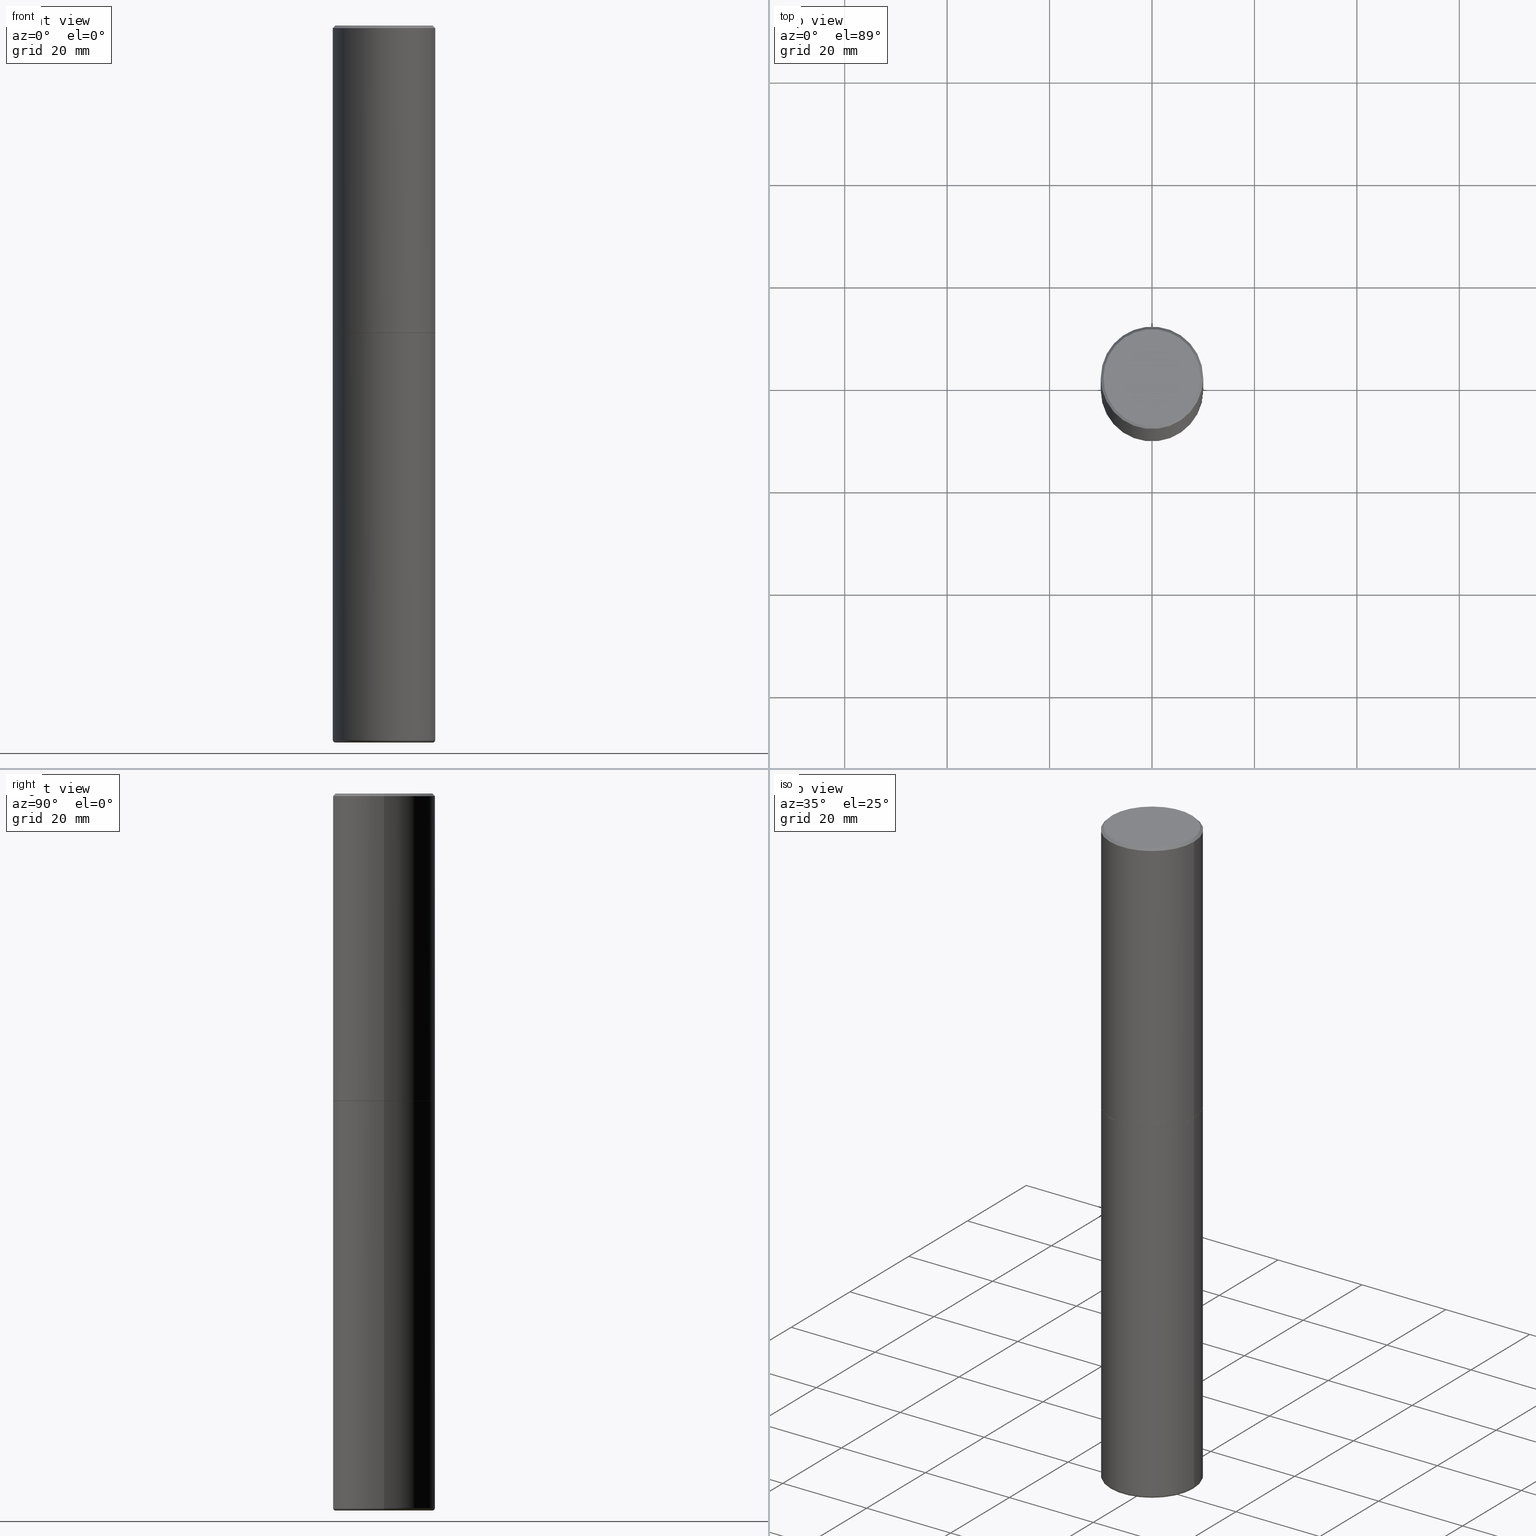
[diagram: canonical four-view strip — front | top / right | iso, engineering-drawing reading convention]
A machine part, canonical four-view strip (front | top / right | iso — engineering-drawing reading convention). The complete STEP part file that produces these views, byte-faithful:
ISO-10303-21;
HEADER;
FILE_DESCRIPTION (( 'STEP AP203' ),
    '1' );
FILE_NAME ('74541.STEP',
    '2024-03-06T15:25:58',
    ( '' ),
    ( '' ),
    'SwSTEP 2.0',
    'SolidWorks 2023',
    '' );
FILE_SCHEMA (( 'CONFIG_CONTROL_DESIGN' ));
ENDSEC;

DATA;
#1 = DIRECTION ( 'NONE',  ( -2.445468806185136877E-29, 3.491481338843145188E-15, 1.000000000000000000 ) ) ;
#2 = APPROVAL ( #349, 'UNSPECIFIED' ) ;
#3 = CIRCLE ( 'NONE', #73, 0.01969999999999985998 ) ;
#4 = DIRECTION ( 'NONE',  ( -2.445468806185136597E-29, 3.491481338843145583E-15, 1.000000000000000000 ) ) ;
#5 = CARTESIAN_POINT ( 'NONE',  ( 0.3937000000000001609, -2.749192406205084400E-15, 1.919750796630860732E-29 ) ) ;
#6 = DESIGN_CONTEXT ( 'detailed design', #38, 'design' ) ;
#7 = ORIENTED_EDGE ( 'NONE', *, *, #146, .F. ) ;
#8 = DIRECTION ( 'NONE',  ( 1.000000000000000000, -6.982962677686265133E-15, 0.000000000000000000 ) ) ;
#9 = CARTESIAN_POINT ( 'NONE',  ( -0.3937000000000000499, 2.679362779428219918E-15, -0.02000000000000008715 ) ) ;
#10 = LOCAL_TIME ( 10, 25, 58.00000000000000000, #309 ) ;
#11 = EDGE_CURVE ( 'NONE', #120, #148, #275, .T. ) ;
#12 = PERSON_AND_ORGANIZATION ( #292, #279 ) ;
#13 = ADVANCED_FACE ( 'NONE', ( #190 ), #294, .T. ) ;
#14 = PERSON_AND_ORGANIZATION_ROLE ( 'creator' ) ;
#15 = ORIENTED_EDGE ( 'NONE', *, *, #324, .F. ) ;
#16 = AXIS2_PLACEMENT_3D ( 'NONE', #393, #299, #77 ) ;
#17 = VERTEX_POINT ( 'NONE', #130 ) ;
#18 = AXIS2_PLACEMENT_3D ( 'NONE', #43, #305, #366 ) ;
#19 = APPLICATION_CONTEXT ( 'configuration controlled 3d designs of mechanical parts and assemblies' ) ;
#20 = DIRECTION ( 'NONE',  ( 1.000000000000000000, -6.982962677686265133E-15, 0.000000000000000000 ) ) ;
#21 = ORIENTED_EDGE ( 'NONE', *, *, #67, .T. ) ;
#22 = ORIENTED_EDGE ( 'NONE', *, *, #67, .F. ) ;
#23 = EDGE_LOOP ( 'NONE', ( #172, #56, #80, #181 ) ) ;
#24 = VECTOR ( 'NONE', #154, 39.37007874015748143 ) ;
#25 =( GEOMETRIC_REPRESENTATION_CONTEXT ( 3 ) GLOBAL_UNCERTAINTY_ASSIGNED_CONTEXT ( ( #325 ) ) GLOBAL_UNIT_ASSIGNED_CONTEXT ( ( #375, #336, #55 ) ) REPRESENTATION_CONTEXT ( 'NONE', 'WORKASPACE' ) );
#26 = CARTESIAN_POINT ( 'NONE',  ( 0.000000000000000000, 0.000000000000000000, 0.000000000000000000 ) ) ;
#27 = APPROVAL_ROLE ( '' ) ;
#28 = FACE_OUTER_BOUND ( 'NONE', #134, .T. ) ;
#29 = CALENDAR_DATE ( 2024, 6, 3 ) ;
#30 = FACE_OUTER_BOUND ( 'NONE', #365, .T. ) ;
#31 = DIRECTION ( 'NONE',  ( -2.445468806185136597E-29, 3.491481338843145583E-15, 1.000000000000000000 ) ) ;
#32 = DIRECTION ( 'NONE',  ( -2.445468806185136597E-29, 3.491481338843145583E-15, 1.000000000000000000 ) ) ;
#33 = CARTESIAN_POINT ( 'NONE',  ( 4.890937612370294178E-31, -6.982962677686321191E-17, -0.02000000000000008715 ) ) ;
#34 = ORIENTED_EDGE ( 'NONE', *, *, #356, .F. ) ;
#35 = DIRECTION ( 'NONE',  ( -2.445468806185136597E-29, 3.491481338843145583E-15, 1.000000000000000000 ) ) ;
#36 = EDGE_LOOP ( 'NONE', ( #296, #152, #341, #48 ) ) ;
#37 = ADVANCED_FACE ( 'NONE', ( #316 ), #254, .T. ) ;
#38 = APPLICATION_CONTEXT ( 'configuration controlled 3d designs of mechanical parts and assemblies' ) ;
#39 = CARTESIAN_POINT ( 'NONE',  ( -0.3936999999999999389, 2.797406750687513998E-15, -1.936584745033356455E-29 ) ) ;
#40 = ADVANCED_FACE ( 'NONE', ( #28 ), #322, .F. ) ;
#41 = DIRECTION ( 'NONE',  ( -2.445468806185136597E-29, 3.491481338843145583E-15, 1.000000000000000000 ) ) ;
#42 = CC_DESIGN_APPROVAL ( #132, ( #72 ) ) ;
#43 = CARTESIAN_POINT ( 'NONE',  ( 0.000000000000000000, 0.000000000000000000, 0.000000000000000000 ) ) ;
#44 = EDGE_CURVE ( 'NONE', #259, #207, #350, .T. ) ;
#45 = VERTEX_POINT ( 'NONE', #159 ) ;
#46 = MANIFOLD_SOLID_BREP ( 'Body-Move/Copy2[2]', #372 ) ;
#47 = DIRECTION ( 'NONE',  ( 1.000000000000000000, -6.982962677686266711E-15, 4.876176775795935793E-29 ) ) ;
#48 = ORIENTED_EDGE ( 'NONE', *, *, #193, .F. ) ;
#49 = DIRECTION ( 'NONE',  ( -2.445468806185136597E-29, 3.491481338843145583E-15, 1.000000000000000000 ) ) ;
#50 = ORIENTED_EDGE ( 'NONE', *, *, #193, .T. ) ;
#51 =( LENGTH_UNIT ( ) NAMED_UNIT ( * ) SI_UNIT ( $, .METRE. ) );
#52 = VERTEX_POINT ( 'NONE', #284 ) ;
#53 = CIRCLE ( 'NONE', #191, 0.01969999999999985998 ) ;
#54 = CC_DESIGN_PERSON_AND_ORGANIZATION_ASSIGNMENT ( #384, #89, ( #396 ) ) ;
#55 =( NAMED_UNIT ( * ) SI_UNIT ( $, .STERADIAN. ) SOLID_ANGLE_UNIT ( ) );
#56 = ORIENTED_EDGE ( 'NONE', *, *, #158, .T. ) ;
#57 = PERSON_AND_ORGANIZATION ( #292, #279 ) ;
#58 = VERTEX_POINT ( 'NONE', #94 ) ;
#59 = VECTOR ( 'NONE', #328, 39.37007874015748143 ) ;
#60 = CIRCLE ( 'NONE', #416, 0.3937000000000000499 ) ;
#61 = FACE_OUTER_BOUND ( 'NONE', #150, .T. ) ;
#62 = PERSON_AND_ORGANIZATION ( #292, #279 ) ;
#63 = CARTESIAN_POINT ( 'NONE',  ( -0.3937000000000000499, 2.679362779428219918E-15, -0.02000000000000008715 ) ) ;
#64 = DIRECTION ( 'NONE',  ( 1.000000000000000000, -6.982962677686269866E-15, 0.000000000000000000 ) ) ;
#65 = AXIS2_PLACEMENT_3D ( 'NONE', #297, #257, #200 ) ;
#66 = PRODUCT_DEFINITION_FORMATION_WITH_SPECIFIED_SOURCE ( 'ANY', '', #74, .NOT_KNOWN. ) ;
#67 = EDGE_CURVE ( 'NONE', #116, #304, #271, .T. ) ;
#68 = FACE_OUTER_BOUND ( 'NONE', #392, .T. ) ;
#69 = DIRECTION ( 'NONE',  ( 1.000000000000000000, -6.982962677686265133E-15, 0.000000000000000000 ) ) ;
#70 = EDGE_CURVE ( 'NONE', #116, #17, #128, .T. ) ;
#71 = DIRECTION ( 'NONE',  ( -1.000000000000000000, 6.982962677686265922E-15, 0.000000000000000000 ) ) ;
#72 = PRODUCT_DEFINITION ( 'UNKNOWN', '', #66, #6 ) ;
#73 = AXIS2_PLACEMENT_3D ( 'NONE', #224, #198, #76 ) ;
#74 = PRODUCT ( '74541', '74541', '', ( #179 ) ) ;
#75 = CARTESIAN_POINT ( 'NONE',  ( 1.347893496593123646E-28, -1.924434684343564878E-14, -5.511800000000000033 ) ) ;
#76 = DIRECTION ( 'NONE',  ( 1.000000000000000000, -6.982962677686179936E-15, 0.000000000000000000 ) ) ;
#77 = DIRECTION ( 'NONE',  ( -1.000000000000000000, 6.982962677686265922E-15, -4.876176775795935793E-29 ) ) ;
#78 = CLOSED_SHELL ( 'NONE', ( #100, #13, #40, #37, #383, #351 ) ) ;
#79 = APPLICATION_PROTOCOL_DEFINITION ( 'international standard', 'config_control_design', 1994, #19 ) ;
#80 = ORIENTED_EDGE ( 'NONE', *, *, #11, .T. ) ;
#81 = DIRECTION ( 'NONE',  ( 1.000000000000000000, -6.982962677686270655E-15, 4.883557194083114022E-29 ) ) ;
#82 = EDGE_LOOP ( 'NONE', ( #313, #21, #329, #83 ) ) ;
#83 = ORIENTED_EDGE ( 'NONE', *, *, #129, .F. ) ;
#84 = APPROVAL ( #156, 'UNSPECIFIED' ) ;
#85 = AXIS2_PLACEMENT_3D ( 'NONE', #261, #131, #265 ) ;
#86 = ORIENTED_EDGE ( 'NONE', *, *, #266, .F. ) ;
#87 = ORIENTED_EDGE ( 'NONE', *, *, #418, .T. ) ;
#88 = DIRECTION ( 'NONE',  ( -2.445468806185136877E-29, 3.491481338843145188E-15, 1.000000000000000000 ) ) ;
#89 = PERSON_AND_ORGANIZATION_ROLE ( 'classification_officer' ) ;
#90 = CARTESIAN_POINT ( 'NONE',  ( 0.3936999999999999389, -2.192475706726552397E-14, -5.492099999999999760 ) ) ;
#91 = AXIS2_PLACEMENT_3D ( 'NONE', #382, #218, #155 ) ;
#92 = AXIS2_PLACEMENT_3D ( 'NONE', #330, #104, #390 ) ;
#93 = DATE_TIME_ROLE ( 'creation_date' ) ;
#94 = CARTESIAN_POINT ( 'NONE',  ( 0.3739999999999999991, -2.185597488489031278E-14, -5.511800000000000033 ) ) ;
#95 = CALENDAR_DATE ( 2024, 6, 3 ) ;
#96 = DIRECTION ( 'NONE',  ( 1.000000000000000000, -6.982962677686265133E-15, 0.000000000000000000 ) ) ;
#97 = DIRECTION ( 'NONE',  ( -2.445468806185136597E-29, 3.491481338843145583E-15, 1.000000000000000000 ) ) ;
#98 = VECTOR ( 'NONE', #88, 39.37007874015748143 ) ;
#99 = CC_DESIGN_APPROVAL ( #2, ( #396 ) ) ;
#100 = ADVANCED_FACE ( 'NONE', ( #61 ), #352, .T. ) ;
#101 = DIRECTION ( 'NONE',  ( -2.438088387897960049E-29, 3.491481338843145188E-15, 1.000000000000000000 ) ) ;
#102 = PLANE ( 'NONE',  #16 ) ;
#103 = PRODUCT_RELATED_PRODUCT_CATEGORY ( 'detail', '', ( #74 ) ) ;
#104 = DIRECTION ( 'NONE',  ( 2.438088387897960049E-29, -3.491481338843145188E-15, -1.000000000000000000 ) ) ;
#105 = AXIS2_PLACEMENT_3D ( 'NONE', #391, #41, #69 ) ;
#106 = DIRECTION ( 'NONE',  ( 1.000000000000000000, -6.982962677686266711E-15, 4.877734241229871763E-29 ) ) ;
#107 = DIRECTION ( 'NONE',  ( -2.445468806185136597E-29, 3.491481338843145583E-15, 1.000000000000000000 ) ) ;
#108 = ORIENTED_EDGE ( 'NONE', *, *, #115, .T. ) ;
#109 = DIRECTION ( 'NONE',  ( -1.000000000000000000, 7.105427357600978193E-15, 0.000000000000000000 ) ) ;
#110 = ORIENTED_EDGE ( 'NONE', *, *, #324, .T. ) ;
#111 = CC_DESIGN_APPROVAL ( #84, ( #66 ) ) ;
#112 = APPLICATION_PROTOCOL_DEFINITION ( 'international standard', 'config_control_design', 1994, #38 ) ;
#113 = ORIENTED_EDGE ( 'NONE', *, *, #342, .T. ) ;
#114 = DIRECTION ( 'NONE',  ( 1.000000000000000000, -6.982962677686267499E-15, 0.000000000000000000 ) ) ;
#115 = EDGE_CURVE ( 'NONE', #120, #273, #242, .T. ) ;
#116 = VERTEX_POINT ( 'NONE', #354 ) ;
#117 = DATE_AND_TIME ( #405, #236 ) ;
#118 = ORIENTED_EDGE ( 'NONE', *, *, #162, .F. ) ;
#119 = FACE_OUTER_BOUND ( 'NONE', #82, .T. ) ;
#120 = VERTEX_POINT ( 'NONE', #90 ) ;
#121 = APPROVAL_PERSON_ORGANIZATION ( #246, #84, #287 ) ;
#122 = DIRECTION ( 'NONE',  ( -1.000000000000000000, 6.982962677686265922E-15, 0.000000000000000000 ) ) ;
#123 = PERSON_AND_ORGANIZATION ( #292, #279 ) ;
#124 = CARTESIAN_POINT ( 'NONE',  ( 4.890937612370294178E-31, -6.982962677686321191E-17, -0.02000000000000008715 ) ) ;
#125 = PERSON_AND_ORGANIZATION_ROLE ( 'design_supplier' ) ;
#126 = DIRECTION ( 'NONE',  ( -2.445468806185136597E-29, 3.491481338843145583E-15, 1.000000000000000000 ) ) ;
#127 = AXIS2_PLACEMENT_3D ( 'NONE', #75, #35, #166 ) ;
#128 = LINE ( 'NONE', #219, #175 ) ;
#129 = EDGE_CURVE ( 'NONE', #17, #270, #278, .T. ) ;
#130 = CARTESIAN_POINT ( 'NONE',  ( -0.3937000000000003830, -1.359550931339130834E-15, -2.361199999999999743 ) ) ;
#131 = DIRECTION ( 'NONE',  ( -2.445468806185136597E-29, 3.491481338843145583E-15, 1.000000000000000000 ) ) ;
#132 = APPROVAL ( #338, 'UNSPECIFIED' ) ;
#133 = CARTESIAN_POINT ( 'NONE',  ( 1.343075923044938861E-28, -1.917556466106043760E-14, -5.492099999999999760 ) ) ;
#134 = EDGE_LOOP ( 'NONE', ( #87, #343 ) ) ;
#135 = CARTESIAN_POINT ( 'NONE',  ( 0.3937000000000000499, -2.770807688499515734E-15, -0.02000000000000008715 ) ) ;
#136 = CARTESIAN_POINT ( 'NONE',  ( -0.3936999999999999389, -1.637815791037292360E-14, -5.492099999999999760 ) ) ;
#137 = AXIS2_PLACEMENT_3D ( 'NONE', #326, #395, #106 ) ;
#138 = AXIS2_PLACEMENT_3D ( 'NONE', #201, #32, #194 ) ;
#139 = DIRECTION ( 'NONE',  ( 1.000000000000000000, -6.982962677686265922E-15, 4.876176775795935793E-29 ) ) ;
#140 = ADVANCED_BREP_SHAPE_REPRESENTATION ( '74541', ( #335, #46, #243 ), #25 ) ;
#141 = ADVANCED_FACE ( 'NONE', ( #68 ), #202, .T. ) ;
#142 = APPROVAL_ROLE ( '' ) ;
#143 = DIRECTION ( 'NONE',  ( 0.000000000000000000, 0.000000000000000000, 1.000000000000000000 ) ) ;
#144 = ORIENTED_EDGE ( 'NONE', *, *, #158, .F. ) ;
#145 = CIRCLE ( 'NONE', #256, 0.3937000000000000499 ) ;
#146 = EDGE_CURVE ( 'NONE', #17, #207, #248, .T. ) ;
#147 = DATE_AND_TIME ( #203, #10 ) ;
#148 = VERTEX_POINT ( 'NONE', #285 ) ;
#149 = PERSON_AND_ORGANIZATION_ROLE ( 'design_owner' ) ;
#150 = EDGE_LOOP ( 'NONE', ( #108, #268, #232, #212 ) ) ;
#151 = CARTESIAN_POINT ( 'NONE',  ( 0.000000000000000000, 0.000000000000000000, 0.000000000000000000 ) ) ;
#152 = ORIENTED_EDGE ( 'NONE', *, *, #410, .T. ) ;
#153 = APPROVAL_PERSON_ORGANIZATION ( #177, #132, #142 ) ;
#154 = DIRECTION ( 'NONE',  ( 0.7071067811866199593, -2.468850131083015945E-15, 0.7071067811864750752 ) ) ;
#155 = DIRECTION ( 'NONE',  ( 1.000000000000000000, -6.982962677686265133E-15, 0.000000000000000000 ) ) ;
#156 = APPROVAL_STATUS ( 'not_yet_approved' ) ;
#157 = DIRECTION ( 'NONE',  ( -2.445468806185136597E-29, 3.491481338843145583E-15, 1.000000000000000000 ) ) ;
#158 = EDGE_CURVE ( 'NONE', #273, #120, #160, .T. ) ;
#159 = CARTESIAN_POINT ( 'NONE',  ( -0.3937000000000000499, -1.091416418915034540E-14, -2.362200000000000077 ) ) ;
#160 = CIRCLE ( 'NONE', #364, 0.3936999999999999389 ) ;
#161 = DIRECTION ( 'NONE',  ( 1.000000000000000000, -6.982962677686266711E-15, 4.876176775795935793E-29 ) ) ;
#162 = EDGE_CURVE ( 'NONE', #304, #270, #414, .T. ) ;
#163 = FACE_OUTER_BOUND ( 'NONE', #312, .T. ) ;
#164 = ADVANCED_FACE ( 'NONE', ( #318 ), #169, .T. ) ;
#165 = DIRECTION ( 'NONE',  ( 2.445468806185136597E-29, -3.491481338843145583E-15, -1.000000000000000000 ) ) ;
#166 = DIRECTION ( 'NONE',  ( 1.000000000000000000, -6.982962677686265133E-15, 0.000000000000000000 ) ) ;
#167 = PLANE ( 'NONE',  #249 ) ;
#168 = LINE ( 'NONE', #5, #307 ) ;
#169 = CONICAL_SURFACE ( 'NONE', #91, 0.3926999999999999935, 0.7853981633975507526 ) ;
#170 = TOROIDAL_SURFACE ( 'NONE', #223, 0.3739999999999999991, 0.01969999999999985998 ) ;
#171 = CARTESIAN_POINT ( 'NONE',  ( -0.3739999999999999991, -1.651813482931766527E-14, -5.492099999999999760 ) ) ;
#172 = ORIENTED_EDGE ( 'NONE', *, *, #269, .F. ) ;
#173 = EDGE_LOOP ( 'NONE', ( #180, #178, #367, #86 ) ) ;
#174 = EDGE_CURVE ( 'NONE', #45, #148, #145, .T. ) ;
#175 = VECTOR ( 'NONE', #386, 39.37007874015748143 ) ;
#176 = CIRCLE ( 'NONE', #105, 0.3739999999999999991 ) ;
#177 = PERSON_AND_ORGANIZATION ( #292, #279 ) ;
#178 = ORIENTED_EDGE ( 'NONE', *, *, #146, .T. ) ;
#179 = MECHANICAL_CONTEXT ( 'NONE', #19, 'mechanical' ) ;
#180 = ORIENTED_EDGE ( 'NONE', *, *, #282, .T. ) ;
#181 = ORIENTED_EDGE ( 'NONE', *, *, #174, .F. ) ;
#182 = AXIS2_PLACEMENT_3D ( 'NONE', #377, #31, #96 ) ;
#183 = DATE_AND_TIME ( #253, #380 ) ;
#184 = DIRECTION ( 'NONE',  ( -2.445468806185136597E-29, 3.491481338843145583E-15, 1.000000000000000000 ) ) ;
#185 = ADVANCED_FACE ( 'NONE', ( #30 ), #167, .F. ) ;
#186 = DIRECTION ( 'NONE',  ( 1.000000000000000000, -6.982962677686265922E-15, 0.000000000000000000 ) ) ;
#187 = PRODUCT_DEFINITION_SHAPE ( 'NONE', 'NONE',  #72 ) ;
#188 = SHAPE_DEFINITION_REPRESENTATION ( #187, #140 ) ;
#189 = DIRECTION ( 'NONE',  ( 1.000000000000000000, -6.982962677686267499E-15, 0.000000000000000000 ) ) ;
#190 = FACE_OUTER_BOUND ( 'NONE', #36, .T. ) ;
#191 = AXIS2_PLACEMENT_3D ( 'NONE', #171, #311, #109 ) ;
#192 = CARTESIAN_POINT ( 'NONE',  ( -0.3937000000000001609, 2.797406750687515575E-15, -1.936584745033357296E-29 ) ) ;
#193 = EDGE_CURVE ( 'NONE', #58, #120, #3, .T. ) ;
#194 = DIRECTION ( 'NONE',  ( 1.000000000000000000, -6.982962677686265922E-15, 0.000000000000000000 ) ) ;
#195 = DIRECTION ( 'NONE',  ( -2.445468806185136877E-29, 3.491481338843145188E-15, 1.000000000000000000 ) ) ;
#196 = AXIS2_PLACEMENT_3D ( 'NONE', #411, #126, #186 ) ;
#197 = CIRCLE ( 'NONE', #138, 0.3937000000000000499 ) ;
#198 = DIRECTION ( 'NONE',  ( -6.982962677686266711E-15, -1.000000000000000000, 3.491481338843145583E-15 ) ) ;
#199 = CC_DESIGN_DATE_AND_TIME_ASSIGNMENT ( #117, #93, ( #72 ) ) ;
#200 = DIRECTION ( 'NONE',  ( 1.000000000000000000, -6.982962677686265922E-15, 0.000000000000000000 ) ) ;
#201 = CARTESIAN_POINT ( 'NONE',  ( 4.890937612370294178E-31, -6.982962677686321191E-17, -0.02000000000000008715 ) ) ;
#202 = CONICAL_SURFACE ( 'NONE', #209, 0.3937000000000000499, 0.7853981633974447263 ) ;
#203 = CALENDAR_DATE ( 2024, 6, 3 ) ;
#204 = CC_DESIGN_PERSON_AND_ORGANIZATION_ASSIGNMENT ( #62, #125, ( #66 ) ) ;
#205 = ORIENTED_EDGE ( 'NONE', *, *, #70, .T. ) ;
#206 = CYLINDRICAL_SURFACE ( 'NONE', #373, 0.3937000000000001609 ) ;
#207 = VERTEX_POINT ( 'NONE', #9 ) ;
#208 = ORIENTED_EDGE ( 'NONE', *, *, #320, .F. ) ;
#209 = AXIS2_PLACEMENT_3D ( 'NONE', #124, #252, #122 ) ;
#210 = APPROVAL_PERSON_ORGANIZATION ( #57, #2, #27 ) ;
#211 = ORIENTED_EDGE ( 'NONE', *, *, #262, .T. ) ;
#212 = ORIENTED_EDGE ( 'NONE', *, *, #11, .F. ) ;
#213 = CARTESIAN_POINT ( 'NONE',  ( 1.343075923044938861E-28, -1.917556466106043760E-14, -5.492099999999999760 ) ) ;
#214 = AXIS2_PLACEMENT_3D ( 'NONE', #26, #97, #417 ) ;
#215 = CARTESIAN_POINT ( 'NONE',  ( 5.776686413970529753E-29, -8.247577218615279626E-15, -2.362200000000000077 ) ) ;
#216 = CC_DESIGN_DATE_AND_TIME_ASSIGNMENT ( #344, #347, ( #396 ) ) ;
#217 = COORDINATED_UNIVERSAL_TIME_OFFSET ( 5, 0, .BEHIND. ) ;
#218 = DIRECTION ( 'NONE',  ( -2.445468806185136597E-29, 3.491481338843145583E-15, 1.000000000000000000 ) ) ;
#219 = CARTESIAN_POINT ( 'NONE',  ( -0.3926999999999999935, -5.457275895285365059E-15, -2.362200000000000077 ) ) ;
#220 = ADVANCED_FACE ( 'NONE', ( #227 ), #102, .F. ) ;
#221 = VECTOR ( 'NONE', #293, 39.37007874015748143 ) ;
#222 = DIRECTION ( 'NONE',  ( 2.438088387897960049E-29, -3.491481338843145188E-15, -1.000000000000000000 ) ) ;
#223 = AXIS2_PLACEMENT_3D ( 'NONE', #133, #258, #81 ) ;
#224 = CARTESIAN_POINT ( 'NONE',  ( 0.3739999999999999991, -2.178719270251510160E-14, -5.492099999999999760 ) ) ;
#225 = CARTESIAN_POINT ( 'NONE',  ( 5.776686413970529753E-29, -8.247577218615279626E-15, -2.362200000000000077 ) ) ;
#226 = ORIENTED_EDGE ( 'NONE', *, *, #262, .F. ) ;
#227 = FACE_OUTER_BOUND ( 'NONE', #302, .T. ) ;
#228 = AXIS2_PLACEMENT_3D ( 'NONE', #412, #290, #64 ) ;
#229 = CONICAL_SURFACE ( 'NONE', #340, 0.3937000000000000499, 0.7853981633974447263 ) ;
#230 = CARTESIAN_POINT ( 'NONE',  ( -0.3737000000000003097, 2.644447966039789847E-15, -2.219626494852397645E-16 ) ) ;
#231 = FACE_OUTER_BOUND ( 'NONE', #371, .T. ) ;
#232 = ORIENTED_EDGE ( 'NONE', *, *, #418, .F. ) ;
#233 = CC_DESIGN_PERSON_AND_ORGANIZATION_ASSIGNMENT ( #12, #149, ( #74 ) ) ;
#234 = ORIENTED_EDGE ( 'NONE', *, *, #44, .T. ) ;
#235 = VECTOR ( 'NONE', #1, 39.37007874015748143 ) ;
#236 = LOCAL_TIME ( 10, 25, 58.00000000000000000, #237 ) ;
#237 = COORDINATED_UNIVERSAL_TIME_OFFSET ( 5, 0, .BEHIND. ) ;
#238 = ORIENTED_EDGE ( 'NONE', *, *, #282, .F. ) ;
#239 = ORIENTED_EDGE ( 'NONE', *, *, #410, .F. ) ;
#240 = FACE_OUTER_BOUND ( 'NONE', #173, .T. ) ;
#241 = ORIENTED_EDGE ( 'NONE', *, *, #44, .F. ) ;
#242 = CIRCLE ( 'NONE', #228, 0.3936999999999999389 ) ;
#243 = AXIS2_PLACEMENT_3D ( 'NONE', #407, #143, #363 ) ;
#244 = CARTESIAN_POINT ( 'NONE',  ( -0.3739999999999999991, -1.648253746103290003E-14, -5.511800000000000033 ) ) ;
#245 = EDGE_LOOP ( 'NONE', ( #277, #306, #401, #241 ) ) ;
#246 = PERSON_AND_ORGANIZATION ( #292, #279 ) ;
#247 = DIRECTION ( 'NONE',  ( -2.445468806185136597E-29, 3.491481338843145583E-15, 1.000000000000000000 ) ) ;
#248 = LINE ( 'NONE', #192, #98 ) ;
#249 = AXIS2_PLACEMENT_3D ( 'NONE', #225, #101, #139 ) ;
#250 = APPROVAL_DATE_TIME ( #280, #2 ) ;
#251 = LOCAL_TIME ( 10, 25, 58.00000000000000000, #289 ) ;
#252 = DIRECTION ( 'NONE',  ( 2.445468806185136597E-29, -3.491481338843145583E-15, -1.000000000000000000 ) ) ;
#253 = CALENDAR_DATE ( 2024, 6, 3 ) ;
#254 = CYLINDRICAL_SURFACE ( 'NONE', #214, 0.3936999999999999389 ) ;
#255 = CARTESIAN_POINT ( 'NONE',  ( 5.776686413970529753E-29, -8.247577218615279626E-15, -2.362200000000000077 ) ) ;
#256 = AXIS2_PLACEMENT_3D ( 'NONE', #215, #247, #189 ) ;
#257 = DIRECTION ( 'NONE',  ( -2.445468806185136597E-29, 3.491481338843145583E-15, 1.000000000000000000 ) ) ;
#258 = DIRECTION ( 'NONE',  ( -2.445468806185136597E-29, 3.491481338843145583E-15, 1.000000000000000000 ) ) ;
#259 = VERTEX_POINT ( 'NONE', #230 ) ;
#260 = LINE ( 'NONE', #135, #221 ) ;
#261 = CARTESIAN_POINT ( 'NONE',  ( 4.890937612370294178E-31, -6.982962677686321191E-17, -0.02000000000000008715 ) ) ;
#262 = EDGE_CURVE ( 'NONE', #304, #116, #409, .T. ) ;
#263 = AXIS2_PLACEMENT_3D ( 'NONE', #255, #222, #385 ) ;
#264 = CONICAL_SURFACE ( 'NONE', #332, 0.3926999999999999935, 0.7853981633975507526 ) ;
#265 = DIRECTION ( 'NONE',  ( 1.000000000000000000, -6.982962677686265922E-15, 0.000000000000000000 ) ) ;
#266 = EDGE_CURVE ( 'NONE', #270, #404, #168, .T. ) ;
#267 = LENGTH_MEASURE_WITH_UNIT ( LENGTH_MEASURE( 0.02539999999999999897 ), #51 );
#268 = ORIENTED_EDGE ( 'NONE', *, *, #269, .T. ) ;
#269 = EDGE_CURVE ( 'NONE', #273, #45, #355, .T. ) ;
#270 = VERTEX_POINT ( 'NONE', #359 ) ;
#271 = CIRCLE ( 'NONE', #182, 0.3926999999999999935 ) ;
#272 = CARTESIAN_POINT ( 'NONE',  ( 0.3937000000000000499, -2.770807688499515734E-15, -0.02000000000000008715 ) ) ;
#273 = VERTEX_POINT ( 'NONE', #136 ) ;
#274 = EDGE_CURVE ( 'NONE', #58, #408, #394, .T. ) ;
#275 = LINE ( 'NONE', #406, #235 ) ;
#276 = DIRECTION ( 'NONE',  ( -2.445468806185136597E-29, 3.491481338843145583E-15, 1.000000000000000000 ) ) ;
#277 = ORIENTED_EDGE ( 'NONE', *, *, #342, .F. ) ;
#278 = CIRCLE ( 'NONE', #196, 0.3937000000000002720 ) ;
#279 = ORGANIZATION ( 'UNSPECIFIED', 'UNSPECIFIED', '' ) ;
#280 = DATE_AND_TIME ( #95, #389 ) ;
#281 = CARTESIAN_POINT ( 'NONE',  ( 0.000000000000000000, 0.000000000000000000, 0.000000000000000000 ) ) ;
#282 = EDGE_CURVE ( 'NONE', #270, #17, #358, .T. ) ;
#283 = PERSON_AND_ORGANIZATION_ROLE ( 'creator' ) ;
#284 = CARTESIAN_POINT ( 'NONE',  ( 0.3737000000000003097, -2.667287895133369937E-15, -2.219626494852029345E-16 ) ) ;
#285 = CARTESIAN_POINT ( 'NONE',  ( 0.3937000000000000499, -1.099676962482036284E-14, -2.362200000000000077 ) ) ;
#286 = AXIS2_PLACEMENT_3D ( 'NONE', #213, #348, #288 ) ;
#287 = APPROVAL_ROLE ( '' ) ;
#288 = DIRECTION ( 'NONE',  ( 1.000000000000000000, -6.982962677686270655E-15, 4.883557194083114022E-29 ) ) ;
#289 = COORDINATED_UNIVERSAL_TIME_OFFSET ( 5, 0, .BEHIND. ) ;
#290 = DIRECTION ( 'NONE',  ( -2.445468806185136597E-29, 3.491481338843145583E-15, 1.000000000000000000 ) ) ;
#291 = EDGE_CURVE ( 'NONE', #207, #404, #415, .T. ) ;
#292 = PERSON ( 'UNSPECIFIED', 'UNSPECIFIED', 'UNSPECIFIED', ('UNSPECIFIED'), ('UNSPECIFIED'), ('UNSPECIFIED') ) ;
#293 = DIRECTION ( 'NONE',  ( 0.7071067811865450192, -7.319954787623246579E-15, -0.7071067811865500152 ) ) ;
#294 = TOROIDAL_SURFACE ( 'NONE', #286, 0.3739999999999999991, 0.01969999999999985998 ) ;
#295 = FACE_OUTER_BOUND ( 'NONE', #376, .T. ) ;
#296 = ORIENTED_EDGE ( 'NONE', *, *, #274, .T. ) ;
#297 = CARTESIAN_POINT ( 'NONE',  ( 5.774240945164344150E-29, -8.244085737276435042E-15, -2.361199999999999743 ) ) ;
#298 = ORIENTED_EDGE ( 'NONE', *, *, #274, .F. ) ;
#299 = DIRECTION ( 'NONE',  ( 2.438088387897960049E-29, -3.491481338843145188E-15, -1.000000000000000000 ) ) ;
#300 = FACE_OUTER_BOUND ( 'NONE', #245, .T. ) ;
#301 = CIRCLE ( 'NONE', #321, 0.3737000000000003097 ) ;
#302 = EDGE_LOOP ( 'NONE', ( #110, #113 ) ) ;
#303 = PERSON_AND_ORGANIZATION ( #292, #279 ) ;
#304 = VERTEX_POINT ( 'NONE', #362 ) ;
#305 = DIRECTION ( 'NONE',  ( -2.445468806185136597E-29, 3.491481338843145583E-15, 1.000000000000000000 ) ) ;
#306 = ORIENTED_EDGE ( 'NONE', *, *, #320, .T. ) ;
#307 = VECTOR ( 'NONE', #195, 39.37007874015748143 ) ;
#308 = CC_DESIGN_PERSON_AND_ORGANIZATION_ASSIGNMENT ( #123, #283, ( #66 ) ) ;
#309 = COORDINATED_UNIVERSAL_TIME_OFFSET ( 5, 0, .BEHIND. ) ;
#310 = ORIENTED_EDGE ( 'NONE', *, *, #129, .T. ) ;
#311 = DIRECTION ( 'NONE',  ( 7.105427357601001859E-15, 1.000000000000000000, -3.491481338843145583E-15 ) ) ;
#312 = EDGE_LOOP ( 'NONE', ( #239, #334, #50, #144 ) ) ;
#313 = ORIENTED_EDGE ( 'NONE', *, *, #70, .F. ) ;
#314 = AXIS2_PLACEMENT_3D ( 'NONE', #357, #4, #8 ) ;
#315 = DIRECTION ( 'NONE',  ( 1.000000000000000000, -6.982962677686269866E-15, 0.000000000000000000 ) ) ;
#316 = FACE_OUTER_BOUND ( 'NONE', #23, .T. ) ;
#317 = DIMENSIONAL_EXPONENTS ( 1.000000000000000000, 0.000000000000000000, 0.000000000000000000, 0.000000000000000000, 0.000000000000000000, 0.000000000000000000, 0.000000000000000000 ) ;
#318 = FACE_OUTER_BOUND ( 'NONE', #337, .T. ) ;
#319 = CIRCLE ( 'NONE', #137, 0.3737000000000003097 ) ;
#320 = EDGE_CURVE ( 'NONE', #52, #404, #260, .T. ) ;
#321 = AXIS2_PLACEMENT_3D ( 'NONE', #398, #107, #361 ) ;
#322 = PLANE ( 'NONE',  #263 ) ;
#323 = CARTESIAN_POINT ( 'NONE',  ( 0.3926999999999999935, -1.098978666214267525E-14, -2.362200000000000077 ) ) ;
#324 = EDGE_CURVE ( 'NONE', #259, #52, #319, .T. ) ;
#325 = UNCERTAINTY_MEASURE_WITH_UNIT (LENGTH_MEASURE( 1.000000000000000082E-05 ), #375, 'distance_accuracy_value', 'NONE');
#326 = CARTESIAN_POINT ( 'NONE',  ( 5.428027354543142984E-45, -7.749784485978325769E-31, -2.219626494852213988E-16 ) ) ;
#327 = CC_DESIGN_PERSON_AND_ORGANIZATION_ASSIGNMENT ( #303, #14, ( #72 ) ) ;
#328 = DIRECTION ( 'NONE',  ( -2.445468806185136877E-29, 3.491481338843145188E-15, 1.000000000000000000 ) ) ;
#329 = ORIENTED_EDGE ( 'NONE', *, *, #162, .T. ) ;
#330 = CARTESIAN_POINT ( 'NONE',  ( 1.347893496593123646E-28, -1.924434684343564878E-14, -5.511800000000000033 ) ) ;
#331 = PLANE ( 'NONE',  #92 ) ;
#332 = AXIS2_PLACEMENT_3D ( 'NONE', #370, #49, #20 ) ;
#333 = APPROVAL_DATE_TIME ( #147, #132 ) ;
#334 = ORIENTED_EDGE ( 'NONE', *, *, #356, .T. ) ;
#335 = MANIFOLD_SOLID_BREP ( 'Body-Move/Copy2[1]', #78 ) ;
#336 =( NAMED_UNIT ( * ) PLANE_ANGLE_UNIT ( ) SI_UNIT ( $, .RADIAN. ) );
#337 = EDGE_LOOP ( 'NONE', ( #211, #205, #238, #118 ) ) ;
#338 = APPROVAL_STATUS ( 'not_yet_approved' ) ;
#339 = ORIENTED_EDGE ( 'NONE', *, *, #266, .T. ) ;
#340 = AXIS2_PLACEMENT_3D ( 'NONE', #33, #165, #71 ) ;
#341 = ORIENTED_EDGE ( 'NONE', *, *, #115, .F. ) ;
#342 = EDGE_CURVE ( 'NONE', #52, #259, #301, .T. ) ;
#343 = ORIENTED_EDGE ( 'NONE', *, *, #174, .T. ) ;
#344 = DATE_AND_TIME ( #29, #251 ) ;
#345 = DIRECTION ( 'NONE',  ( -0.7071067811865450192, 2.468850131082230634E-15, -0.7071067811865500152 ) ) ;
#346 = CC_DESIGN_SECURITY_CLASSIFICATION ( #396, ( #66 ) ) ;
#347 = DATE_TIME_ROLE ( 'classification_date' ) ;
#348 = DIRECTION ( 'NONE',  ( -2.445468806185136597E-29, 3.491481338843145583E-15, 1.000000000000000000 ) ) ;
#349 = APPROVAL_STATUS ( 'not_yet_approved' ) ;
#350 = LINE ( 'NONE', #63, #353 ) ;
#351 = ADVANCED_FACE ( 'NONE', ( #231 ), #331, .T. ) ;
#352 = CYLINDRICAL_SURFACE ( 'NONE', #387, 0.3936999999999999389 ) ;
#353 = VECTOR ( 'NONE', #345, 39.37007874015748143 ) ;
#354 = CARTESIAN_POINT ( 'NONE',  ( -0.3926999999999999935, -5.451977440937141868E-15, -2.362200000000000077 ) ) ;
#355 = LINE ( 'NONE', #39, #59 ) ;
#356 = EDGE_CURVE ( 'NONE', #408, #58, #176, .T. ) ;
#357 = CARTESIAN_POINT ( 'NONE',  ( 5.776686413970529753E-29, -8.247577218615279626E-15, -2.362200000000000077 ) ) ;
#358 = CIRCLE ( 'NONE', #65, 0.3937000000000002720 ) ;
#359 = CARTESIAN_POINT ( 'NONE',  ( 0.3937000000000002720, -1.099327814348151984E-14, -2.361199999999999743 ) ) ;
#360 = ADVANCED_FACE ( 'NONE', ( #300 ), #229, .T. ) ;
#361 = DIRECTION ( 'NONE',  ( 1.000000000000000000, -6.982962677686266711E-15, 4.877734241229871763E-29 ) ) ;
#362 = CARTESIAN_POINT ( 'NONE',  ( 0.3926999999999999935, -1.098978666214267525E-14, -2.362200000000000077 ) ) ;
#363 = DIRECTION ( 'NONE',  ( 1.000000000000000000, 0.000000000000000000, 0.000000000000000000 ) ) ;
#364 = AXIS2_PLACEMENT_3D ( 'NONE', #379, #184, #315 ) ;
#365 = EDGE_LOOP ( 'NONE', ( #226, #22 ) ) ;
#366 = DIRECTION ( 'NONE',  ( 1.000000000000000000, -6.982962677686266711E-15, 4.876176775795935793E-29 ) ) ;
#367 = ORIENTED_EDGE ( 'NONE', *, *, #374, .F. ) ;
#368 = CARTESIAN_POINT ( 'NONE',  ( 5.776686413970529753E-29, -8.247577218615279626E-15, -2.362200000000000077 ) ) ;
#369 = ORIENTED_EDGE ( 'NONE', *, *, #291, .T. ) ;
#370 = CARTESIAN_POINT ( 'NONE',  ( 5.776686413970529753E-29, -8.247577218615279626E-15, -2.362200000000000077 ) ) ;
#371 = EDGE_LOOP ( 'NONE', ( #298, #34 ) ) ;
#372 = CLOSED_SHELL ( 'NONE', ( #164, #399, #360, #141, #388, #397, #185, #220 ) ) ;
#373 = AXIS2_PLACEMENT_3D ( 'NONE', #151, #276, #47 ) ;
#374 = EDGE_CURVE ( 'NONE', #404, #207, #197, .T. ) ;
#375 =( CONVERSION_BASED_UNIT ( 'INCH', #267 ) LENGTH_UNIT ( ) NAMED_UNIT ( #317 ) );
#376 = EDGE_LOOP ( 'NONE', ( #7, #310, #339, #403 ) ) ;
#377 = CARTESIAN_POINT ( 'NONE',  ( 5.776686413970529753E-29, -8.247577218615279626E-15, -2.362200000000000077 ) ) ;
#378 = COORDINATED_UNIVERSAL_TIME_OFFSET ( 5, 0, .BEHIND. ) ;
#379 = CARTESIAN_POINT ( 'NONE',  ( 1.343075923044938861E-28, -1.917556466106043760E-14, -5.492099999999999760 ) ) ;
#380 = LOCAL_TIME ( 10, 25, 58.00000000000000000, #217 ) ;
#381 = SECURITY_CLASSIFICATION_LEVEL ( 'unclassified' ) ;
#382 = CARTESIAN_POINT ( 'NONE',  ( 5.776686413970529753E-29, -8.247577218615279626E-15, -2.362200000000000077 ) ) ;
#383 = ADVANCED_FACE ( 'NONE', ( #163 ), #170, .T. ) ;
#384 = PERSON_AND_ORGANIZATION ( #292, #279 ) ;
#385 = DIRECTION ( 'NONE',  ( -1.000000000000000000, 6.982962677686265922E-15, -4.876176775795935793E-29 ) ) ;
#386 = DIRECTION ( 'NONE',  ( -0.7071067811866199593, 7.493145998870616062E-15, 0.7071067811864750752 ) ) ;
#387 = AXIS2_PLACEMENT_3D ( 'NONE', #281, #157, #161 ) ;
#388 = ADVANCED_FACE ( 'NONE', ( #295 ), #400, .T. ) ;
#389 = LOCAL_TIME ( 10, 25, 58.00000000000000000, #378 ) ;
#390 = DIRECTION ( 'NONE',  ( -1.000000000000000000, 6.982962677686265922E-15, -4.876176775795935793E-29 ) ) ;
#391 = CARTESIAN_POINT ( 'NONE',  ( 1.347893496593123646E-28, -1.924434684343564878E-14, -5.511800000000000033 ) ) ;
#392 = EDGE_LOOP ( 'NONE', ( #208, #15, #234, #369 ) ) ;
#393 = CARTESIAN_POINT ( 'NONE',  ( 2.609533152651359776E-15, 0.3737000000000003097, -1.415747901068295320E-15 ) ) ;
#394 = CIRCLE ( 'NONE', #127, 0.3739999999999999991 ) ;
#395 = DIRECTION ( 'NONE',  ( -2.445468806185136597E-29, 3.491481338843145583E-15, 1.000000000000000000 ) ) ;
#396 = SECURITY_CLASSIFICATION ( '', '', #381 ) ;
#397 = ADVANCED_FACE ( 'NONE', ( #119 ), #264, .T. ) ;
#398 = CARTESIAN_POINT ( 'NONE',  ( 5.428027354543142984E-45, -7.749784485978325769E-31, -2.219626494852213988E-16 ) ) ;
#399 = ADVANCED_FACE ( 'NONE', ( #240 ), #206, .T. ) ;
#400 = CYLINDRICAL_SURFACE ( 'NONE', #18, 0.3937000000000001609 ) ;
#401 = ORIENTED_EDGE ( 'NONE', *, *, #374, .T. ) ;
#402 = DIRECTION ( 'NONE',  ( -2.445468806185136597E-29, 3.491481338843145583E-15, 1.000000000000000000 ) ) ;
#403 = ORIENTED_EDGE ( 'NONE', *, *, #291, .F. ) ;
#404 = VERTEX_POINT ( 'NONE', #272 ) ;
#405 = CALENDAR_DATE ( 2024, 6, 3 ) ;
#406 = CARTESIAN_POINT ( 'NONE',  ( 0.3936999999999999389, -2.749192406205082822E-15, 1.919750796630859611E-29 ) ) ;
#407 = CARTESIAN_POINT ( 'NONE',  ( 0.000000000000000000, 0.000000000000000000, 0.000000000000000000 ) ) ;
#408 = VERTEX_POINT ( 'NONE', #244 ) ;
#409 = CIRCLE ( 'NONE', #314, 0.3926999999999999935 ) ;
#410 = EDGE_CURVE ( 'NONE', #408, #273, #53, .T. ) ;
#411 = CARTESIAN_POINT ( 'NONE',  ( 5.774240945164344150E-29, -8.244085737276435042E-15, -2.361199999999999743 ) ) ;
#412 = CARTESIAN_POINT ( 'NONE',  ( 1.343075923044938861E-28, -1.917556466106043760E-14, -5.492099999999999760 ) ) ;
#413 = APPROVAL_DATE_TIME ( #183, #84 ) ;
#414 = LINE ( 'NONE', #323, #24 ) ;
#415 = CIRCLE ( 'NONE', #85, 0.3937000000000000499 ) ;
#416 = AXIS2_PLACEMENT_3D ( 'NONE', #368, #402, #114 ) ;
#417 = DIRECTION ( 'NONE',  ( 1.000000000000000000, -6.982962677686266711E-15, 4.876176775795935793E-29 ) ) ;
#418 = EDGE_CURVE ( 'NONE', #148, #45, #60, .T. ) ;
ENDSEC;
END-ISO-10303-21;
